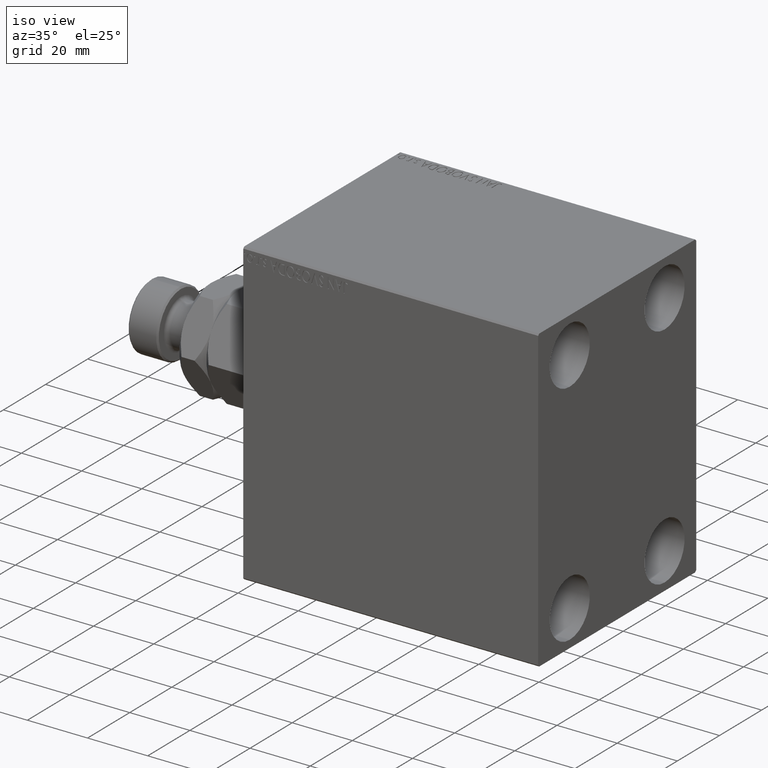
[diagram: clean part render]
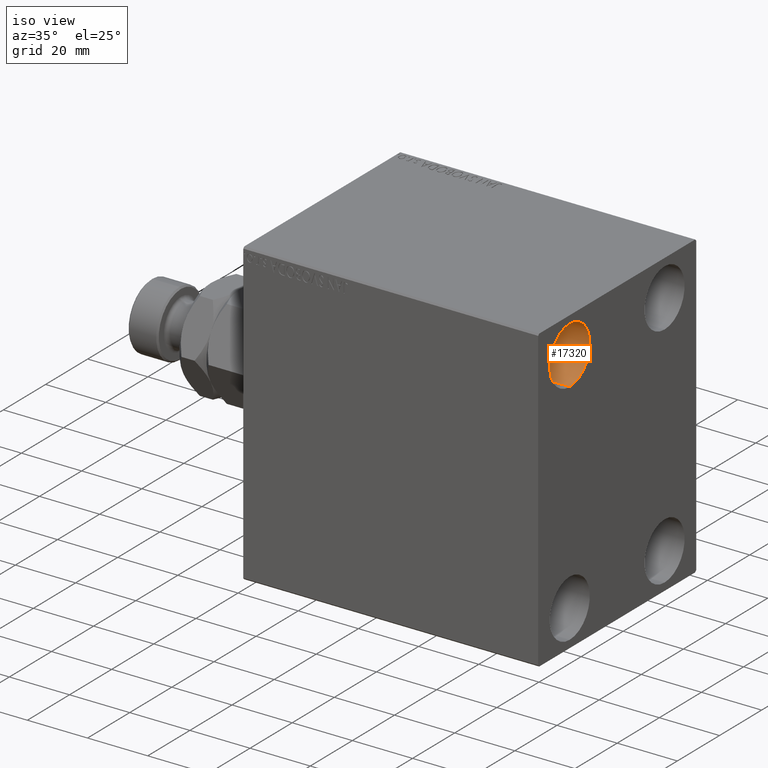
[diagram: same view with one face highlighted and labeled with its STEP entity id]
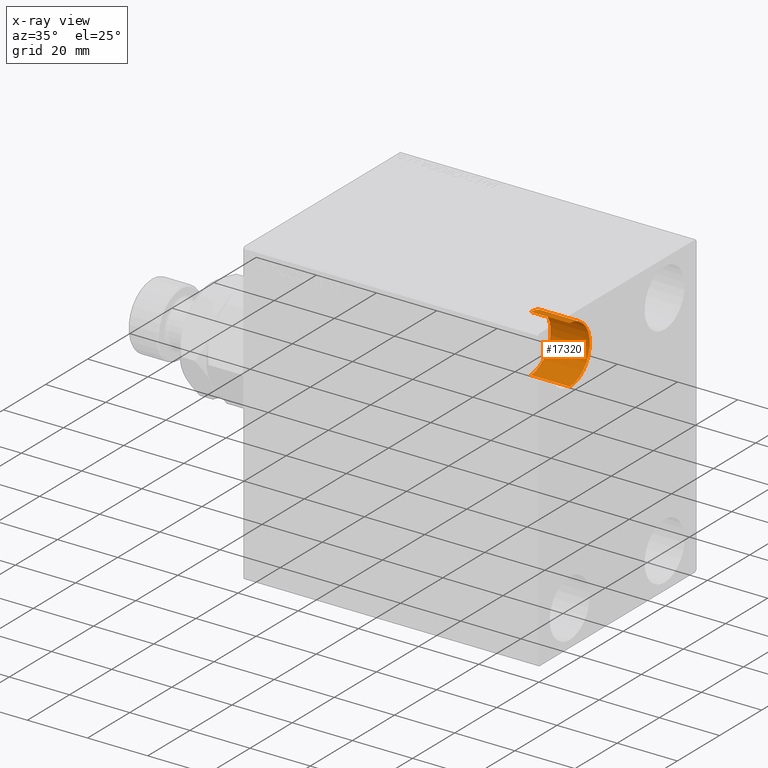
[diagram: x-ray of the same camera — body ghosted, the highlighted face saturated]
A machine part, iso view. The second image highlights one B-rep face of the part: STEP entity #17320.
The next image is the same camera in x-ray: the body ghosted, the highlighted face saturated — about 3% of this face is hidden behind the body in this view.
In plain terms, the highlighted cylindrical surface (edge-blend (fillet) strip) has radius 9.5 mm, axis along (1, 0, 0).
Its self-contained STEP definition (entity closure, byte-faithful):
#124 = EDGE_CURVE ( 'NONE', #32813, #24999, #19977, .T. ) ;
#2418 = DIRECTION ( 'NONE',  ( 0.000000000000000000, 0.000000000000000000, -1.000000000000000000 ) ) ;
#5250 = CARTESIAN_POINT ( 'NONE',  ( 98.00000000000000000, -22.49999999999999645, 28.49999999999998934 ) ) ;
#6845 = CARTESIAN_POINT ( 'NONE',  ( 98.00000000000000000, -22.49999999999999645, 37.99999999999999289 ) ) ;
#8635 = ORIENTED_EDGE ( 'NONE', *, *, #19812, .F. ) ;
#8648 = DIRECTION ( 'NONE',  ( 1.000000000000000000, -0.000000000000000000, -0.000000000000000000 ) ) ;
#9386 = DIRECTION ( 'NONE',  ( 0.000000000000000000, 0.000000000000000000, 1.000000000000000000 ) ) ;
#10684 = VERTEX_POINT ( 'NONE', #22110 ) ;
#12109 = CARTESIAN_POINT ( 'NONE',  ( 85.00000000000000000, -22.49999999999999645, 47.49999999999999289 ) ) ;
#12362 = CIRCLE ( 'NONE', #39736, 9.500000000000001776 ) ;
#13927 = VECTOR ( 'NONE', #16047, 1000.000000000000000 ) ;
#14068 = CARTESIAN_POINT ( 'NONE',  ( 85.00000000000000000, -22.49999999999999645, 47.49999999999999289 ) ) ;
#16047 = DIRECTION ( 'NONE',  ( 1.000000000000000000, -0.000000000000000000, -0.000000000000000000 ) ) ;
#16064 = AXIS2_PLACEMENT_3D ( 'NONE', #20007, #34143, #2418 ) ;
#17022 = DIRECTION ( 'NONE',  ( -1.000000000000000000, -0.000000000000000000, -0.000000000000000000 ) ) ;
#17320 = ADVANCED_FACE ( 'NONE', ( #26942 ), #40848, .F. ) ;
#17405 = EDGE_CURVE ( 'NONE', #38774, #32813, #12362, .T. ) ;
#17676 = DIRECTION ( 'NONE',  ( -1.000000000000000000, -0.000000000000000000, -0.000000000000000000 ) ) ;
#17698 = ORIENTED_EDGE ( 'NONE', *, *, #17405, .T. ) ;
#17814 = ORIENTED_EDGE ( 'NONE', *, *, #124, .T. ) ;
#19812 = EDGE_CURVE ( 'NONE', #38774, #10684, #36903, .T. ) ;
#19977 = LINE ( 'NONE', #22524, #28311 ) ;
#20007 = CARTESIAN_POINT ( 'NONE',  ( 85.00000000000000000, -22.49999999999999645, 37.99999999999999289 ) ) ;
#22110 = CARTESIAN_POINT ( 'NONE',  ( 98.00000000000000000, -22.49999999999999645, 47.49999999999999289 ) ) ;
#22524 = CARTESIAN_POINT ( 'NONE',  ( 85.00000000000000000, -22.49999999999999645, 28.49999999999998934 ) ) ;
#23931 = CARTESIAN_POINT ( 'NONE',  ( 85.00000000000000000, -22.49999999999999645, 37.99999999999999289 ) ) ;
#24164 = AXIS2_PLACEMENT_3D ( 'NONE', #6845, #17022, #9386 ) ;
#24999 = VERTEX_POINT ( 'NONE', #5250 ) ;
#26942 = FACE_OUTER_BOUND ( 'NONE', #41685, .T. ) ;
#27130 = CIRCLE ( 'NONE', #24164, 9.500000000000001776 ) ;
#28311 = VECTOR ( 'NONE', #8648, 1000.000000000000000 ) ;
#32813 = VERTEX_POINT ( 'NONE', #42135 ) ;
#34143 = DIRECTION ( 'NONE',  ( 1.000000000000000000, -0.000000000000000000, -0.000000000000000000 ) ) ;
#34315 = EDGE_CURVE ( 'NONE', #10684, #24999, #27130, .T. ) ;
#34603 = DIRECTION ( 'NONE',  ( 0.000000000000000000, 0.000000000000000000, 1.000000000000000000 ) ) ;
#36729 = ORIENTED_EDGE ( 'NONE', *, *, #34315, .F. ) ;
#36903 = LINE ( 'NONE', #12109, #13927 ) ;
#38774 = VERTEX_POINT ( 'NONE', #14068 ) ;
#39736 = AXIS2_PLACEMENT_3D ( 'NONE', #23931, #17676, #34603 ) ;
#40848 = CYLINDRICAL_SURFACE ( 'NONE', #16064, 9.500000000000001776 ) ;
#41685 = EDGE_LOOP ( 'NONE', ( #8635, #17698, #17814, #36729 ) ) ;
#42135 = CARTESIAN_POINT ( 'NONE',  ( 85.00000000000000000, -22.49999999999999645, 28.49999999999998934 ) ) ;